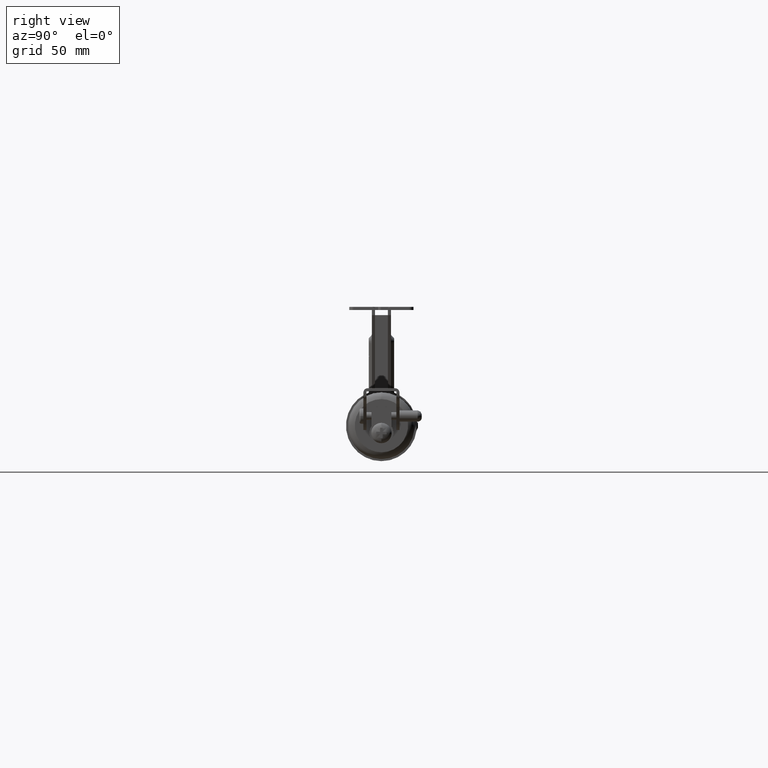
[diagram: clean part render]
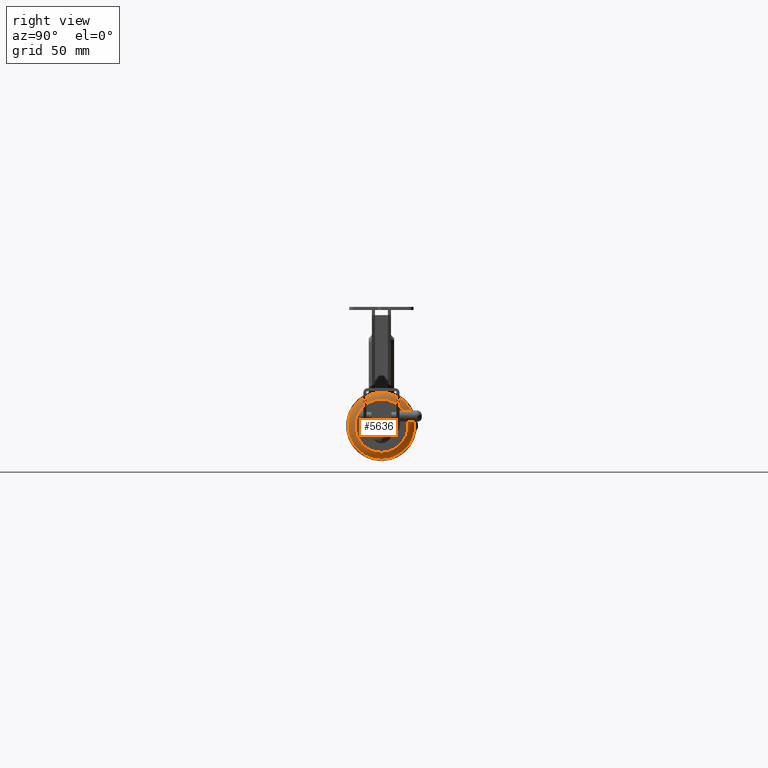
[diagram: same view with one face highlighted and labeled with its STEP entity id]
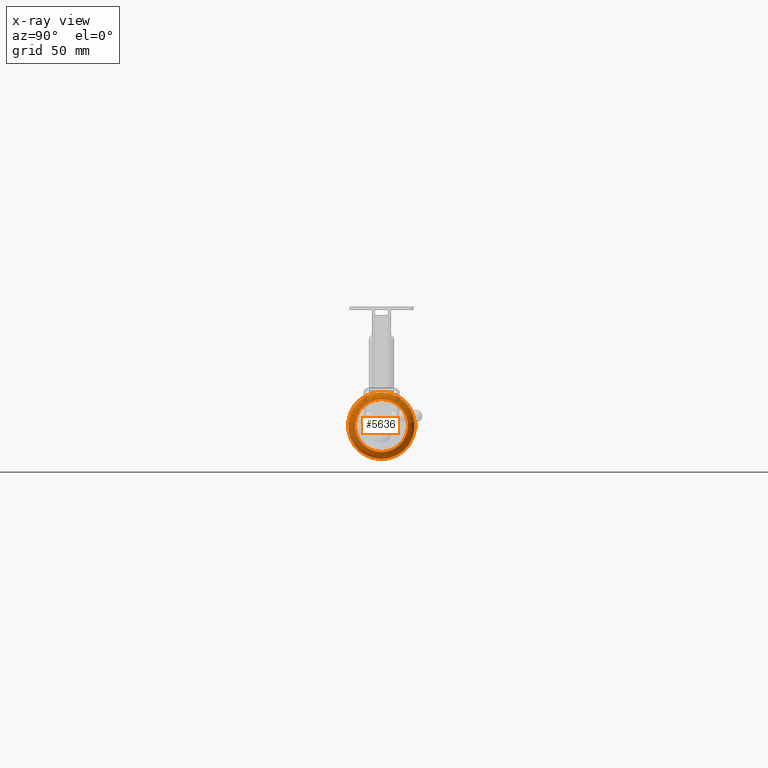
[diagram: x-ray of the same camera — body ghosted, the highlighted face saturated]
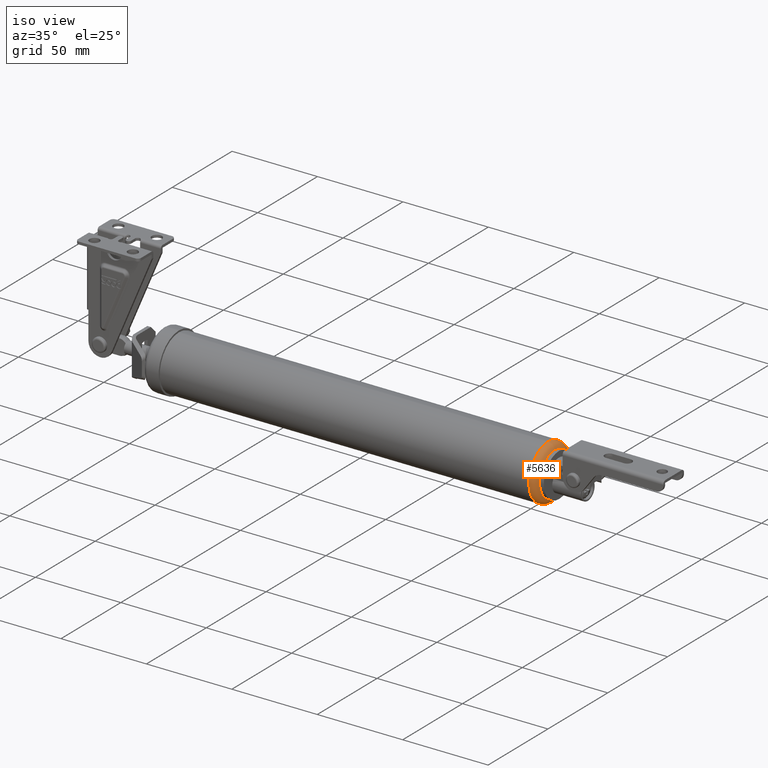
[diagram: same view with one face highlighted and labeled with its STEP entity id]
A machine part, right view. The second image highlights one B-rep face of the part: STEP entity #5636.
The next image is the same camera in x-ray: the body ghosted, the highlighted face saturated — about 2% of this face is hidden behind the body in this view.
A second angle (iso view) of the same face is appended — the face is thin or edge-on in the first view.
In plain terms, the highlighted toroidal blend (fillet) surface has major radius 12 mm and minor (blend) radius 4 mm.
Its self-contained STEP definition (entity closure, byte-faithful):
#1217=TOROIDAL_SURFACE('',#6006,12.,4.);
#1426=FACE_BOUND('',#1873,.T.);
#1515=FACE_OUTER_BOUND('',#1872,.T.);
#1872=EDGE_LOOP('',(#3901));
#1873=EDGE_LOOP('',(#3902));
#2304=CIRCLE('',#6007,16.);
#2305=CIRCLE('',#6008,12.7500000000001);
#2527=VERTEX_POINT('',#8230);
#2528=VERTEX_POINT('',#8232);
#3073=EDGE_CURVE('',#2527,#2527,#2304,.T.);
#3074=EDGE_CURVE('',#2528,#2528,#2305,.T.);
#3901=ORIENTED_EDGE('',*,*,#3073,.F.);
#3902=ORIENTED_EDGE('',*,*,#3074,.T.);
#5636=ADVANCED_FACE('',(#1515,#1426),#1217,.T.);
#6006=AXIS2_PLACEMENT_3D('',#8229,#6600,#6601);
#6007=AXIS2_PLACEMENT_3D('',#8231,#6602,#6603);
#6008=AXIS2_PLACEMENT_3D('',#8233,#6604,#6605);
#6600=DIRECTION('center_axis',(0.,1.,0.));
#6601=DIRECTION('ref_axis',(0.,0.,1.));
#6602=DIRECTION('center_axis',(-3.75785659351172E-15,-1.,-6.59303459725205E-14));
#6603=DIRECTION('ref_axis',(-6.93889390390725E-16,-6.59303459725205E-14,
1.));
#6604=DIRECTION('center_axis',(0.,-1.,0.));
#6605=DIRECTION('ref_axis',(-2.78644210101998E-15,0.,1.));
#8229=CARTESIAN_POINT('Origin',(-8.32667268468867E-15,110.070941588625,
5.13478148889135E-15));
#8230=CARTESIAN_POINT('',(0.,110.070941588625,16.));
#8231=CARTESIAN_POINT('Origin',(1.11022302462516E-14,110.070941588626,-3.94949584426453E-15));
#8232=CARTESIAN_POINT('',(-9.88809735360157E-15,114.,-12.7500000000002));
#8233=CARTESIAN_POINT('Origin',(2.66453525910038E-14,114.,-7.68641914149852E-14));